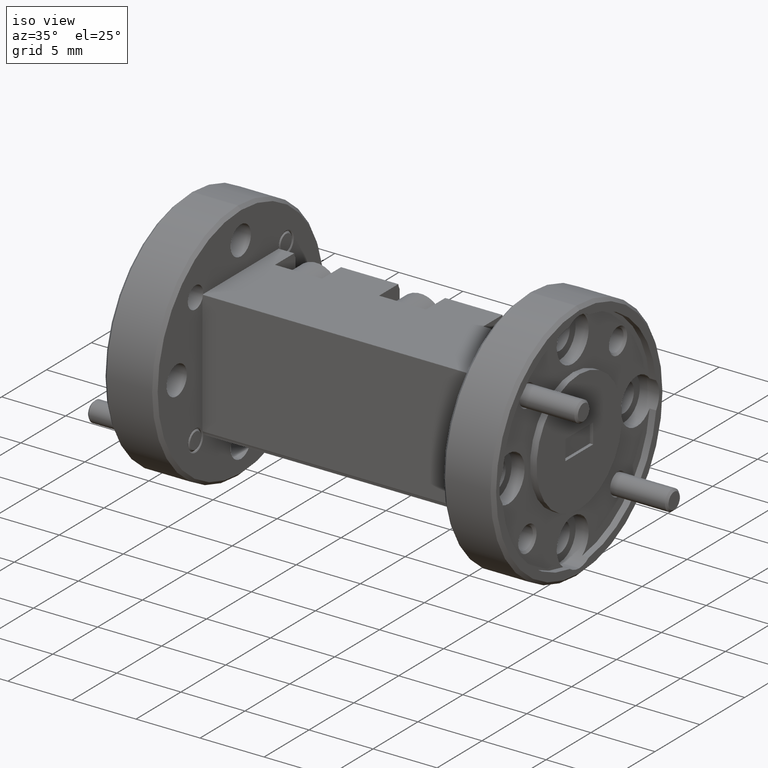
[diagram: clean part render]
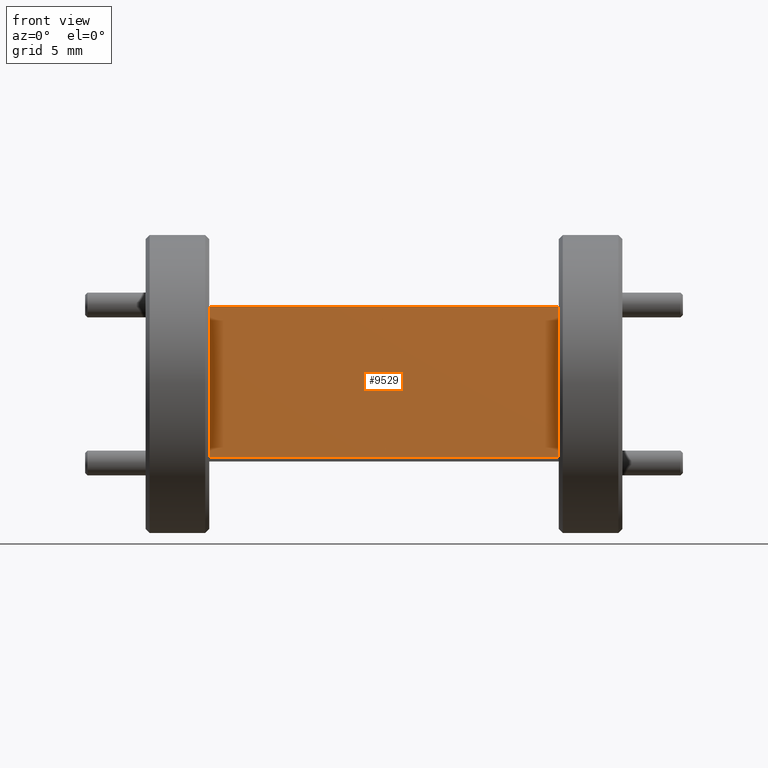
[diagram: tour spotlight — one face highlighted and labeled with its STEP entity id]
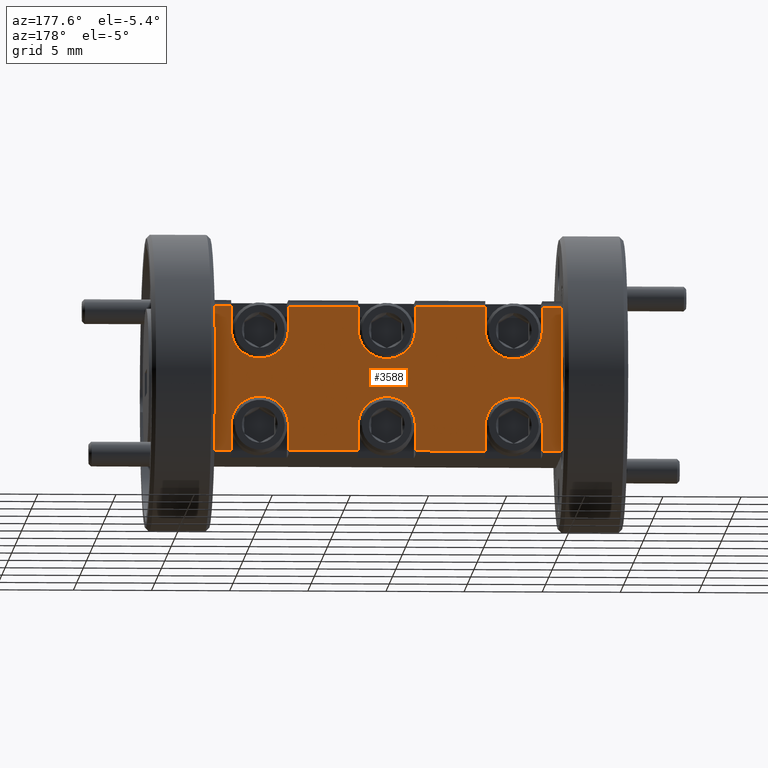
[diagram: tour spotlight — one face highlighted and labeled with its STEP entity id]
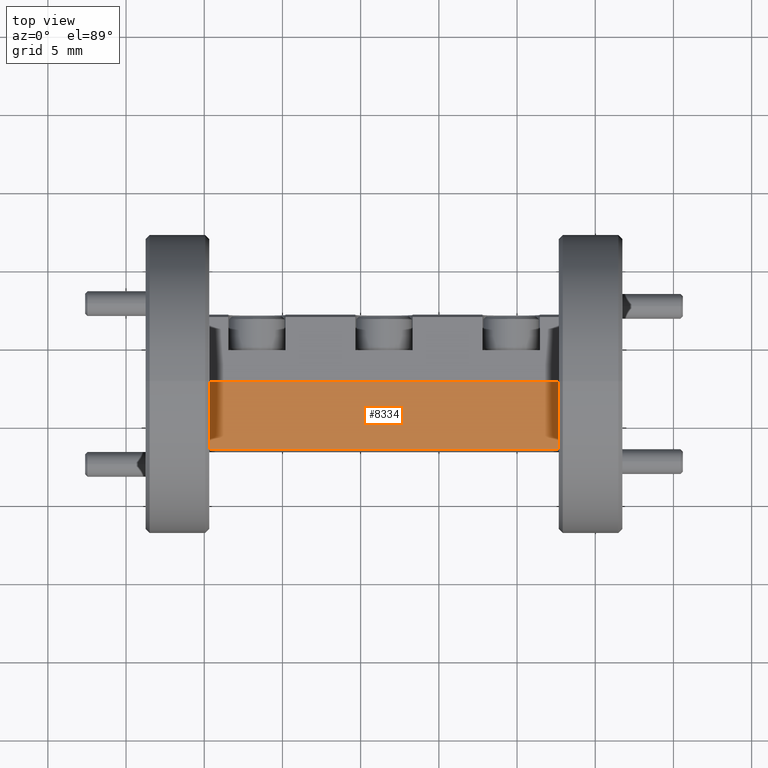
[diagram: tour spotlight — one face highlighted and labeled with its STEP entity id]
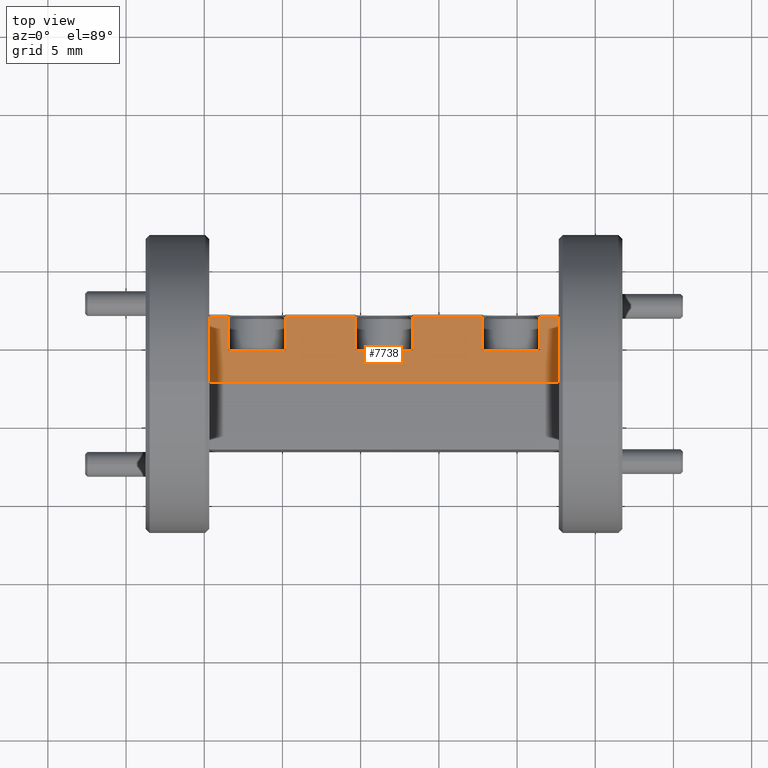
[diagram: tour spotlight — one face highlighted and labeled with its STEP entity id]
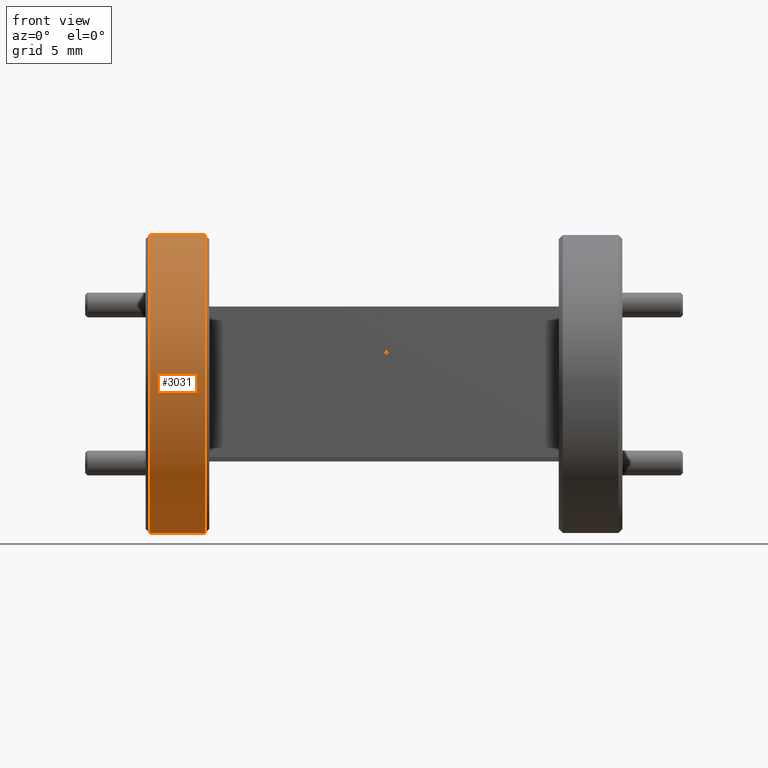
[diagram: tour spotlight — one face highlighted and labeled with its STEP entity id]
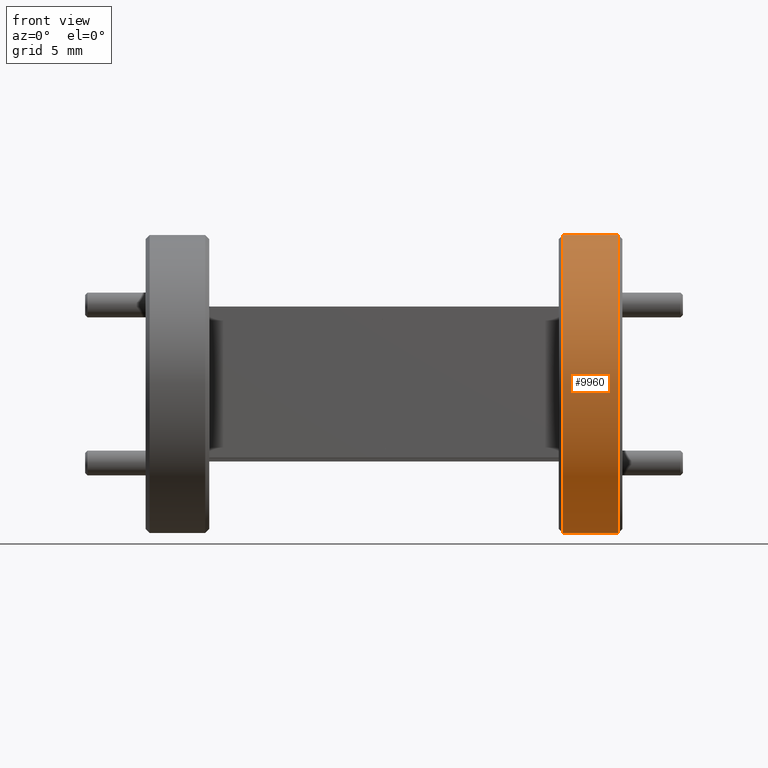
[diagram: tour spotlight — one face highlighted and labeled with its STEP entity id]
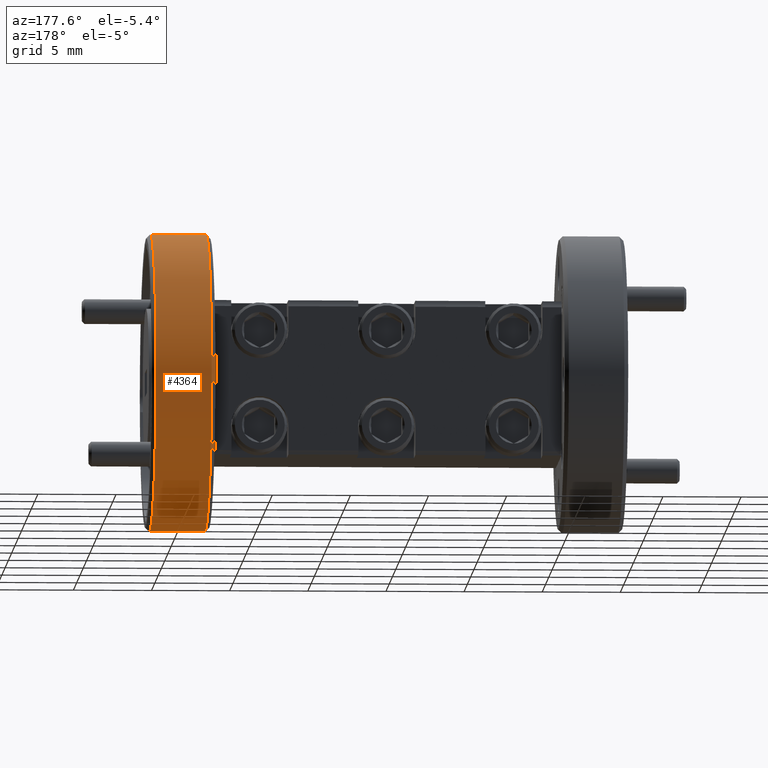
[diagram: tour spotlight — one face highlighted and labeled with its STEP entity id]
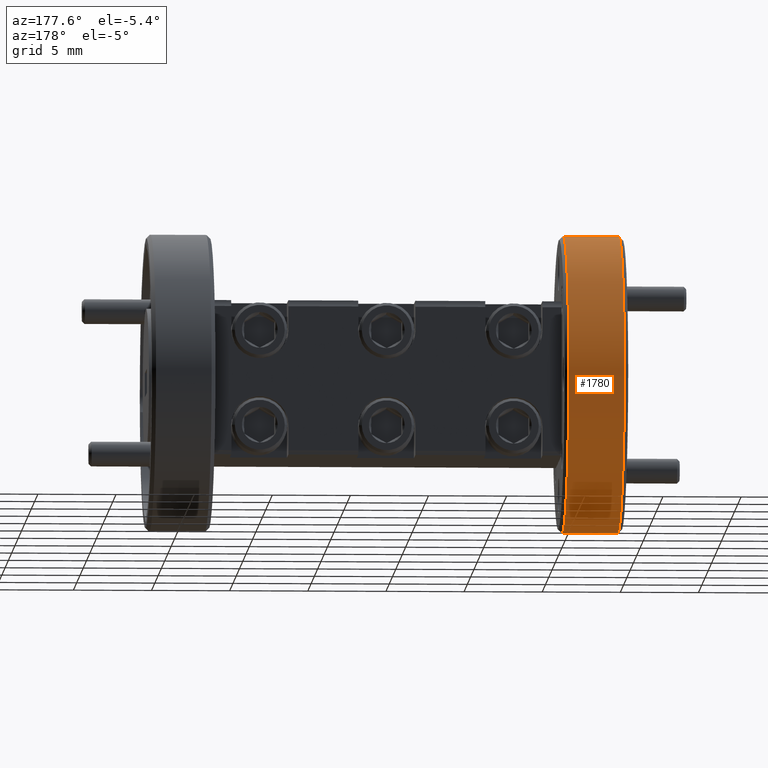
[diagram: tour spotlight — one face highlighted and labeled with its STEP entity id]
A machine part: a face-by-face anatomy tour. The part has 410 B-rep faces; the first image is the clean iso view, then the 8 largest visible faces are spotlighted one at a time (largest first), each with its STEP entity span.

Face 1 — front view, entity #9529. In plain terms, the highlighted planar face has unit normal (-0, 1, 0).
Definition (entity closure, byte-faithful):
#414 = EDGE_CURVE ( 'NONE', #8583, #545, #10306, .T. ) ;
#545 = VERTEX_POINT ( 'NONE', #3422 ) ;
#558 = EDGE_CURVE ( 'NONE', #5206, #5336, #635, .T. ) ;
#635 = LINE ( 'NONE', #3370, #6236 ) ;
#723 = ORIENTED_EDGE ( 'NONE', *, *, #558, .F. ) ;
#730 = ORIENTED_EDGE ( 'NONE', *, *, #8538, .T. ) ;
#867 = VECTOR ( 'NONE', #4885, 39.37007874015748143 ) ;
#1069 = CARTESIAN_POINT ( 'NONE',  ( 0.01245128250286008965, 0.5265558021064788985, 1.056696360816367974 ) ) ;
#1427 = VECTOR ( 'NONE', #11725, 39.37007874015748143 ) ;
#1467 = DIRECTION ( 'NONE',  ( -8.884191668433091897E-17, 1.000000000000000000, 4.817955376316477079E-17 ) ) ;
#1611 = CARTESIAN_POINT ( 'NONE',  ( 0.01245128250285988496, 0.5265558021064788985, 0.6872106685476393473 ) ) ;
#2096 = VECTOR ( 'NONE', #9462, 39.37007874015748143 ) ;
#2252 = CARTESIAN_POINT ( 'NONE',  ( 0.8924512825028598773, 0.5265558021064788985, 1.066031897602086165 ) ) ;
#2768 = CARTESIAN_POINT ( 'NONE',  ( 0.01245128250286008965, 0.5265558021064788985, 1.056696360816367974 ) ) ;
#2818 = CARTESIAN_POINT ( 'NONE',  ( 0.01245128250286008965, 0.5265558021064788985, 0.4919535146820028793 ) ) ;
#3177 = LINE ( 'NONE', #10723, #1427 ) ;
#3370 = CARTESIAN_POINT ( 'NONE',  ( 0.01245128250286008965, 0.5265558021064788985, 0.4919535146820028793 ) ) ;
#3422 = CARTESIAN_POINT ( 'NONE',  ( 0.01410364920518561785, 0.5265558021064787875, 1.066031897602084610 ) ) ;
#3500 = VERTEX_POINT ( 'NONE', #4447 ) ;
#3873 = EDGE_CURVE ( 'NONE', #3500, #8583, #4824, .T. ) ;
#4447 = CARTESIAN_POINT ( 'NONE',  ( 0.8924512825028598773, 0.5265558021064788985, 0.6872106685476392363 ) ) ;
#4494 = EDGE_CURVE ( 'NONE', #545, #5336, #11987, .T. ) ;
#4551 = DIRECTION ( 'NONE',  ( -1.402348636747680963E-18, -4.817955376316473998E-17, 1.000000000000000000 ) ) ;
#4729 = EDGE_LOOP ( 'NONE', ( #723, #730, #10551, #6264, #6457 ) ) ;
#4824 = LINE ( 'NONE', #6755, #2096 ) ;
#4885 = DIRECTION ( 'NONE',  ( -1.000000000000000000, 2.674502495201554687E-33, -0.000000000000000000 ) ) ;
#5206 = VERTEX_POINT ( 'NONE', #1611 ) ;
#5336 = VERTEX_POINT ( 'NONE', #1069 ) ;
#5512 = CARTESIAN_POINT ( 'NONE',  ( 0.01322850595343346390, 0.5265558021064788985, 1.059762882430979714 ) ) ;
#6047 = AXIS2_PLACEMENT_3D ( 'NONE', #2818, #1467, #7349 ) ;
#6236 = VECTOR ( 'NONE', #4551, 39.37007874015748143 ) ;
#6264 = ORIENTED_EDGE ( 'NONE', *, *, #414, .T. ) ;
#6424 = CARTESIAN_POINT ( 'NONE',  ( 0.01410364920518561785, 0.5265558021064787875, 1.066031897602084610 ) ) ;
#6457 = ORIENTED_EDGE ( 'NONE', *, *, #4494, .T. ) ;
#6755 = CARTESIAN_POINT ( 'NONE',  ( 0.8924512825028598773, 0.5265558021064790095, 0.4919535146820028793 ) ) ;
#7349 = DIRECTION ( 'NONE',  ( 1.000000000000000000, 8.884191668433091897E-17, -5.551115123125780853E-17 ) ) ;
#7681 = CARTESIAN_POINT ( 'NONE',  ( 1.032451282502860224, 0.5265558021064788985, 1.066031897602086165 ) ) ;
#8538 = EDGE_CURVE ( 'NONE', #5206, #3500, #3177, .T. ) ;
#8583 = VERTEX_POINT ( 'NONE', #2252 ) ;
#9462 = DIRECTION ( 'NONE',  ( -1.402348636747680963E-18, -4.817955376316473998E-17, 1.000000000000000000 ) ) ;
#9529 = ADVANCED_FACE ( 'NONE', ( #9953 ), #10174, .F. ) ;
#9953 = FACE_OUTER_BOUND ( 'NONE', #4729, .T. ) ;
#10174 = PLANE ( 'NONE',  #6047 ) ;
#10193 = CARTESIAN_POINT ( 'NONE',  ( 0.01380728797549338541, 0.5265558021064788985, 1.062869124819075806 ) ) ;
#10306 = LINE ( 'NONE', #7681, #867 ) ;
#10551 = ORIENTED_EDGE ( 'NONE', *, *, #3873, .T. ) ;
#10723 = CARTESIAN_POINT ( 'NONE',  ( 1.032451282502860224, 0.5265558021064788985, 0.6872106685476392363 ) ) ;
#11725 = DIRECTION ( 'NONE',  ( 1.000000000000000000, -2.674502495201554687E-33, 0.000000000000000000 ) ) ;
#11987 = B_SPLINE_CURVE_WITH_KNOTS ( 'NONE', 3,
 ( #6424, #10193, #5512, #2768 ),
 .UNSPECIFIED., .F., .F.,
 ( 4, 4 ),
 ( 0.0005741155330905420209, 0.0008147986866334716929 ),
 .UNSPECIFIED. ) ;

Face 2 — auxiliary view, entity #3588. In plain terms, the highlighted planar face has unit normal (-0, -1, 0).
Definition (entity closure, byte-faithful):
#54 = VERTEX_POINT ( 'NONE', #10954 ) ;
#99 = CARTESIAN_POINT ( 'NONE',  ( 0.06045128250285996402, 0.8665558021064787564, 0.9919535146820032123 ) ) ;
#115 = ORIENTED_EDGE ( 'NONE', *, *, #1794, .T. ) ;
#272 = ORIENTED_EDGE ( 'NONE', *, *, #11037, .F. ) ;
#295 = DIRECTION ( 'NONE',  ( -1.000000000000000000, 0.000000000000000000, 0.000000000000000000 ) ) ;
#303 = CIRCLE ( 'NONE', #6260, 0.07200000000000000844 ) ;
#391 = CARTESIAN_POINT ( 'NONE',  ( 0.2044512825028600711, 0.8665558021064787564, 1.051516003625126539 ) ) ;
#417 = ORIENTED_EDGE ( 'NONE', *, *, #4920, .F. ) ;
#499 = VERTEX_POINT ( 'NONE', #4420 ) ;
#506 = EDGE_CURVE ( 'NONE', #10724, #9556, #1682, .T. ) ;
#538 = VECTOR ( 'NONE', #6402, 39.37007874015748143 ) ;
#542 = CARTESIAN_POINT ( 'NONE',  ( 0.5244512825028599945, 0.8665558021064787564, 0.7519535146820029992 ) ) ;
#569 = CARTESIAN_POINT ( 'NONE',  ( 0.8444512825028599456, 0.8665558021064786454, 0.9919535146820032123 ) ) ;
#670 = DIRECTION ( 'NONE',  ( 9.106159978880901061E-16, 0.000000000000000000, -1.000000000000000000 ) ) ;
#756 = ORIENTED_EDGE ( 'NONE', *, *, #2812, .T. ) ;
#786 = EDGE_CURVE ( 'NONE', #4133, #10724, #4963, .T. ) ;
#825 = LINE ( 'NONE', #4612, #1688 ) ;
#836 = CARTESIAN_POINT ( 'NONE',  ( 0.3804512825028600331, 0.8665558021064787564, 1.066953514682003057 ) ) ;
#851 = LINE ( 'NONE', #1919, #11384 ) ;
#933 = CARTESIAN_POINT ( 'NONE',  ( 0.7004512825028601508, 0.8665558021064786454, 1.066953514682003057 ) ) ;
#1198 = EDGE_CURVE ( 'NONE', #10642, #4047, #11547, .T. ) ;
#1234 = CARTESIAN_POINT ( 'NONE',  ( 0.7004512825028599288, 0.8665558021064787564, 0.6870882494393947271 ) ) ;
#1257 = ORIENTED_EDGE ( 'NONE', *, *, #11568, .T. ) ;
#1285 = VECTOR ( 'NONE', #6314, 39.37007874015748143 ) ;
#1306 = CIRCLE ( 'NONE', #8047, 0.07200000000000000844 ) ;
#1455 = CARTESIAN_POINT ( 'NONE',  ( 0.01245128250286002200, 0.8665558021064787564, 0.6923910257388795619 ) ) ;
#1554 = CARTESIAN_POINT ( 'NONE',  ( 0.8924512825028599883, 0.8665558021064787564, 0.6870882494393947271 ) ) ;
#1587 = DIRECTION ( 'NONE',  ( -1.164139770027384973E-16, -1.000000000000000000, 6.625526864779352844E-33 ) ) ;
#1599 = LINE ( 'NONE', #10213, #5353 ) ;
#1605 = CARTESIAN_POINT ( 'NONE',  ( 0.5244512825028599945, 0.8665558021064787564, 0.7519535146820029992 ) ) ;
#1633 = LINE ( 'NONE', #9028, #10089 ) ;
#1656 = VECTOR ( 'NONE', #8686, 39.37007874015748143 ) ;
#1676 = VERTEX_POINT ( 'NONE', #11428 ) ;
#1682 = LINE ( 'NONE', #11920, #9962 ) ;
#1688 = VECTOR ( 'NONE', #8376, 39.37007874015748143 ) ;
#1767 = DIRECTION ( 'NONE',  ( -5.691349986800549604E-17, -0.000000000000000000, -1.000000000000000000 ) ) ;
#1773 = CARTESIAN_POINT ( 'NONE',  ( 0.8444512825028599456, 0.8665558021064787564, 1.051516003625126539 ) ) ;
#1794 = EDGE_CURVE ( 'NONE', #5294, #54, #2275, .T. ) ;
#1866 = CARTESIAN_POINT ( 'NONE',  ( 0.4524512825028599861, 0.8665558021064787564, 0.7519535146820029992 ) ) ;
#1872 = CARTESIAN_POINT ( 'NONE',  ( 0.3804512825028599776, 0.8665558021064787564, 0.6870882494393947271 ) ) ;
#1874 = CARTESIAN_POINT ( 'NONE',  ( 0.2044512825028599878, 0.8665558021064787564, 0.9919535146820032123 ) ) ;
#1919 = CARTESIAN_POINT ( 'NONE',  ( 0.06045128250286002647, 0.8665558021064787564, 1.066953514682003057 ) ) ;
#2055 = VERTEX_POINT ( 'NONE', #4323 ) ;
#2067 = EDGE_CURVE ( 'NONE', #11497, #8844, #2410, .T. ) ;
#2210 = EDGE_LOOP ( 'NONE', ( #6986, #11753, #6673, #4779, #3267, #756, #10030, #7040, #2913, #7236, #1257, #8650, #11626, #3431, #10396, #115, #5220, #417, #8486, #8435, #3003, #8107, #7968, #10610, #8499, #272, #6302, #3448, #10141 ) ) ;
#2224 = EDGE_CURVE ( 'NONE', #4527, #10787, #851, .T. ) ;
#2275 = LINE ( 'NONE', #9831, #10766 ) ;
#2284 = EDGE_CURVE ( 'NONE', #2055, #2962, #825, .T. ) ;
#2406 = CARTESIAN_POINT ( 'NONE',  ( 0.8444512825028599456, 0.8665558021064787564, 0.7519535146820029992 ) ) ;
#2410 = LINE ( 'NONE', #542, #1285 ) ;
#2451 = CARTESIAN_POINT ( 'NONE',  ( 0.3804512825028600331, 0.8665558021064787564, 0.6769535146820031546 ) ) ;
#2465 = VERTEX_POINT ( 'NONE', #1872 ) ;
#2491 = DIRECTION ( 'NONE',  ( -1.000000000000000000, 0.000000000000000000, 0.000000000000000000 ) ) ;
#2521 = DIRECTION ( 'NONE',  ( -9.106159978880901061E-16, 0.000000000000000000, 1.000000000000000000 ) ) ;
#2523 = DIRECTION ( 'NONE',  ( -1.000000000000000000, 0.000000000000000000, 0.000000000000000000 ) ) ;
#2535 = CARTESIAN_POINT ( 'NONE',  ( 0.01245128250286002200, 0.8665558021064787564, 1.251953514682003110 ) ) ;
#2547 = VERTEX_POINT ( 'NONE', #10784 ) ;
#2664 = DIRECTION ( 'NONE',  ( -1.000000000000000000, 0.000000000000000000, 0.000000000000000000 ) ) ;
#2685 = DIRECTION ( 'NONE',  ( 1.000000000000000000, -0.000000000000000000, -0.000000000000000000 ) ) ;
#2745 = CARTESIAN_POINT ( 'NONE',  ( 0.7004512825028599288, 0.8665558021064787564, 1.051516003625126539 ) ) ;
#2812 = EDGE_CURVE ( 'NONE', #9786, #499, #3677, .T. ) ;
#2839 = VERTEX_POINT ( 'NONE', #3742 ) ;
#2843 = DIRECTION ( 'NONE',  ( -9.106159978880901061E-16, 0.000000000000000000, -1.000000000000000000 ) ) ;
#2854 = EDGE_CURVE ( 'NONE', #8163, #11497, #9836, .T. ) ;
#2906 = VERTEX_POINT ( 'NONE', #2745 ) ;
#2913 = ORIENTED_EDGE ( 'NONE', *, *, #7774, .T. ) ;
#2926 = CARTESIAN_POINT ( 'NONE',  ( 0.06045128250286002647, 0.8665558021064787564, 0.6769535146820031546 ) ) ;
#2962 = VERTEX_POINT ( 'NONE', #3762 ) ;
#3003 = ORIENTED_EDGE ( 'NONE', *, *, #2067, .F. ) ;
#3091 = LINE ( 'NONE', #7079, #5043 ) ;
#3191 = CARTESIAN_POINT ( 'NONE',  ( 0.5244512825028599945, 0.8665558021064787564, 0.9919535146820032123 ) ) ;
#3240 = CARTESIAN_POINT ( 'NONE',  ( 0.7004512825028601508, 0.8665558021064787564, 0.6769535146820031546 ) ) ;
#3267 = ORIENTED_EDGE ( 'NONE', *, *, #8304, .T. ) ;
#3306 = AXIS2_PLACEMENT_3D ( 'NONE', #1866, #5547, #10166 ) ;
#3431 = ORIENTED_EDGE ( 'NONE', *, *, #506, .T. ) ;
#3448 = ORIENTED_EDGE ( 'NONE', *, *, #2284, .T. ) ;
#3461 = EDGE_CURVE ( 'NONE', #10642, #8844, #3091, .T. ) ;
#3588 = ADVANCED_FACE ( 'NONE', ( #7257 ), #11005, .F. ) ;
#3593 = DIRECTION ( 'NONE',  ( -1.164139770027385466E-16, -1.000000000000000000, -6.625526864779355581E-33 ) ) ;
#3677 = LINE ( 'NONE', #12231, #538 ) ;
#3742 = CARTESIAN_POINT ( 'NONE',  ( 0.06045128250285996402, 0.8665558021064787564, 0.7519535146820029992 ) ) ;
#3762 = CARTESIAN_POINT ( 'NONE',  ( 0.01410364920518575489, 0.8665558021064787564, 0.6870882494393948381 ) ) ;
#3852 = CARTESIAN_POINT ( 'NONE',  ( 1.032451282502860002, 0.8665558021064787564, 1.051516003625126539 ) ) ;
#3862 = EDGE_CURVE ( 'NONE', #9556, #5294, #7478, .T. ) ;
#3935 = CARTESIAN_POINT ( 'NONE',  ( 0.5244512825028601055, 0.8665558021064787564, 0.6870882494393948381 ) ) ;
#4047 = VERTEX_POINT ( 'NONE', #10385 ) ;
#4133 = VERTEX_POINT ( 'NONE', #569 ) ;
#4171 = VERTEX_POINT ( 'NONE', #11570 ) ;
#4209 = CARTESIAN_POINT ( 'NONE',  ( 0.01361655628227561969, 0.8665558021064787564, 0.6888677209463806017 ) ) ;
#4323 = CARTESIAN_POINT ( 'NONE',  ( 0.06045128250286009586, 0.8665558021064787564, 0.6870882494393947271 ) ) ;
#4331 = VERTEX_POINT ( 'NONE', #7935 ) ;
#4420 = CARTESIAN_POINT ( 'NONE',  ( 0.3804512825028599776, 0.8665558021064787564, 1.051516003625126539 ) ) ;
#4471 = DIRECTION ( 'NONE',  ( -1.164139770027385466E-16, -1.000000000000000000, -6.625526864779355581E-33 ) ) ;
#4527 = VERTEX_POINT ( 'NONE', #4827 ) ;
#4535 = CARTESIAN_POINT ( 'NONE',  ( 0.7724512825028599927, 0.8665558021064786454, 0.9919535146820032123 ) ) ;
#4559 = CARTESIAN_POINT ( 'NONE',  ( 0.8924512825028600993, 0.8665558021064787564, 1.051516003625126539 ) ) ;
#4603 = CARTESIAN_POINT ( 'NONE',  ( 0.5244512825028601055, 0.8665558021064787564, 1.051516003625126539 ) ) ;
#4612 = CARTESIAN_POINT ( 'NONE',  ( 1.032451282502860002, 0.8665558021064787564, 0.6870882494393947271 ) ) ;
#4623 = DIRECTION ( 'NONE',  ( -9.106159978880901061E-16, 0.000000000000000000, -1.000000000000000000 ) ) ;
#4709 = VECTOR ( 'NONE', #2521, 39.37007874015748143 ) ;
#4779 = ORIENTED_EDGE ( 'NONE', *, *, #6922, .T. ) ;
#4786 = LINE ( 'NONE', #3852, #5347 ) ;
#4827 = CARTESIAN_POINT ( 'NONE',  ( 0.06045128250286009586, 0.8665558021064787564, 1.051516003625126539 ) ) ;
#4886 = CARTESIAN_POINT ( 'NONE',  ( 0.01245128250286002200, 0.8665558021064787564, 0.6923910257388795619 ) ) ;
#4920 = EDGE_CURVE ( 'NONE', #4047, #2547, #6844, .T. ) ;
#4963 = LINE ( 'NONE', #10643, #1656 ) ;
#5043 = VECTOR ( 'NONE', #6016, 39.37007874015748143 ) ;
#5146 = VECTOR ( 'NONE', #10467, 39.37007874015748143 ) ;
#5171 = DIRECTION ( 'NONE',  ( -9.106159978880901061E-16, 0.000000000000000000, 1.000000000000000000 ) ) ;
#5220 = ORIENTED_EDGE ( 'NONE', *, *, #11101, .F. ) ;
#5241 = AXIS2_PLACEMENT_3D ( 'NONE', #2535, #1587, #5383 ) ;
#5294 = VERTEX_POINT ( 'NONE', #1554 ) ;
#5347 = VECTOR ( 'NONE', #7637, 39.37007874015748143 ) ;
#5353 = VECTOR ( 'NONE', #5529, 39.37007874015748143 ) ;
#5383 = DIRECTION ( 'NONE',  ( 1.000000000000000000, -1.164139770027384973E-16, 0.000000000000000000 ) ) ;
#5417 = DIRECTION ( 'NONE',  ( 9.106159978880901061E-16, 0.000000000000000000, 1.000000000000000000 ) ) ;
#5522 = VECTOR ( 'NONE', #5417, 39.37007874015748143 ) ;
#5529 = DIRECTION ( 'NONE',  ( -5.691349986800549604E-17, -0.000000000000000000, -1.000000000000000000 ) ) ;
#5536 = EDGE_CURVE ( 'NONE', #12150, #4331, #10658, .T. ) ;
#5547 = DIRECTION ( 'NONE',  ( 1.164139770027385466E-16, 1.000000000000000000, -6.625526864779355581E-33 ) ) ;
#5696 = VECTOR ( 'NONE', #11522, 39.37007874015748143 ) ;
#5704 = EDGE_CURVE ( 'NONE', #1676, #11996, #1599, .T. ) ;
#5710 = CARTESIAN_POINT ( 'NONE',  ( 0.8924512825028600993, 0.8665558021064787564, 1.251953514682003110 ) ) ;
#5729 = LINE ( 'NONE', #2926, #5696 ) ;
#5802 = DIRECTION ( 'NONE',  ( 1.000000000000000000, -0.000000000000000000, -0.000000000000000000 ) ) ;
#5913 = LINE ( 'NONE', #933, #5146 ) ;
#5995 = EDGE_CURVE ( 'NONE', #2962, #11996, #10186, .T. ) ;
#6016 = DIRECTION ( 'NONE',  ( -1.000000000000000000, 0.000000000000000000, 0.000000000000000000 ) ) ;
#6019 = DIRECTION ( 'NONE',  ( -1.164139770027385466E-16, -1.000000000000000000, -6.625526864779355581E-33 ) ) ;
#6073 = VECTOR ( 'NONE', #8155, 39.37007874015748143 ) ;
#6124 = AXIS2_PLACEMENT_3D ( 'NONE', #4535, #3593, #2664 ) ;
#6237 = CARTESIAN_POINT ( 'NONE',  ( 0.3804512825028599776, 0.8665558021064787564, 0.7519535146820029992 ) ) ;
#6246 = CARTESIAN_POINT ( 'NONE',  ( 0.1324512825028599794, 0.8665558021064787564, 0.7519535146820029992 ) ) ;
#6260 = AXIS2_PLACEMENT_3D ( 'NONE', #6246, #10122, #9947 ) ;
#6302 = ORIENTED_EDGE ( 'NONE', *, *, #10457, .F. ) ;
#6305 = CARTESIAN_POINT ( 'NONE',  ( 0.7724512825028599927, 0.8665558021064787564, 0.7519535146820029992 ) ) ;
#6314 = DIRECTION ( 'NONE',  ( 9.106159978880901061E-16, 0.000000000000000000, -1.000000000000000000 ) ) ;
#6402 = DIRECTION ( 'NONE',  ( 1.000000000000000000, -0.000000000000000000, -0.000000000000000000 ) ) ;
#6481 = VERTEX_POINT ( 'NONE', #4603 ) ;
#6531 = VECTOR ( 'NONE', #670, 39.37007874015748143 ) ;
#6532 = LINE ( 'NONE', #7344, #5522 ) ;
#6673 = ORIENTED_EDGE ( 'NONE', *, *, #2224, .T. ) ;
#6844 = CIRCLE ( 'NONE', #8410, 0.07199999999999993905 ) ;
#6922 = EDGE_CURVE ( 'NONE', #10787, #8382, #10251, .T. ) ;
#6952 = EDGE_CURVE ( 'NONE', #11695, #4133, #9864, .T. ) ;
#6958 = CARTESIAN_POINT ( 'NONE',  ( 0.2044512825028599878, 0.8665558021064787564, 0.7519535146820029992 ) ) ;
#6986 = ORIENTED_EDGE ( 'NONE', *, *, #5704, .F. ) ;
#7040 = ORIENTED_EDGE ( 'NONE', *, *, #10565, .T. ) ;
#7079 = CARTESIAN_POINT ( 'NONE',  ( 1.032451282502860002, 0.8665558021064787564, 0.6870882494393947271 ) ) ;
#7236 = ORIENTED_EDGE ( 'NONE', *, *, #11612, .T. ) ;
#7237 = DIRECTION ( 'NONE',  ( 1.164139770027385466E-16, 1.000000000000000000, -6.625526864779355581E-33 ) ) ;
#7257 = FACE_OUTER_BOUND ( 'NONE', #2210, .T. ) ;
#7344 = CARTESIAN_POINT ( 'NONE',  ( 0.2044512825028599878, 0.8665558021064787564, 0.9919535146820032123 ) ) ;
#7478 = LINE ( 'NONE', #5710, #9209 ) ;
#7637 = DIRECTION ( 'NONE',  ( 1.000000000000000000, -0.000000000000000000, -0.000000000000000000 ) ) ;
#7774 = EDGE_CURVE ( 'NONE', #8177, #6481, #1633, .T. ) ;
#7935 = CARTESIAN_POINT ( 'NONE',  ( 0.2044512825028601266, 0.8665558021064787564, 0.6870882494393949491 ) ) ;
#7968 = ORIENTED_EDGE ( 'NONE', *, *, #8159, .F. ) ;
#8023 = VECTOR ( 'NONE', #5171, 39.37007874015748143 ) ;
#8047 = AXIS2_PLACEMENT_3D ( 'NONE', #8975, #6019, #295 ) ;
#8102 = DIRECTION ( 'NONE',  ( 9.106159978880901061E-16, 0.000000000000000000, -1.000000000000000000 ) ) ;
#8107 = ORIENTED_EDGE ( 'NONE', *, *, #2854, .F. ) ;
#8155 = DIRECTION ( 'NONE',  ( -1.000000000000000000, 0.000000000000000000, 0.000000000000000000 ) ) ;
#8159 = EDGE_CURVE ( 'NONE', #2465, #8163, #9019, .T. ) ;
#8163 = VERTEX_POINT ( 'NONE', #6237 ) ;
#8177 = VERTEX_POINT ( 'NONE', #3191 ) ;
#8302 = CARTESIAN_POINT ( 'NONE',  ( 0.1324512825028599794, 0.8665558021064787564, 0.9919535146820032123 ) ) ;
#8304 = EDGE_CURVE ( 'NONE', #8382, #9786, #6532, .T. ) ;
#8376 = DIRECTION ( 'NONE',  ( -1.000000000000000000, 0.000000000000000000, 0.000000000000000000 ) ) ;
#8382 = VERTEX_POINT ( 'NONE', #1874 ) ;
#8410 = AXIS2_PLACEMENT_3D ( 'NONE', #6305, #7237, #2523 ) ;
#8435 = ORIENTED_EDGE ( 'NONE', *, *, #3461, .T. ) ;
#8486 = ORIENTED_EDGE ( 'NONE', *, *, #1198, .F. ) ;
#8494 = CARTESIAN_POINT ( 'NONE',  ( 1.032451282502860002, 0.8665558021064787564, 1.051516003625126539 ) ) ;
#8499 = ORIENTED_EDGE ( 'NONE', *, *, #5536, .F. ) ;
#8631 = LINE ( 'NONE', #8494, #9184 ) ;
#8650 = ORIENTED_EDGE ( 'NONE', *, *, #6952, .T. ) ;
#8686 = DIRECTION ( 'NONE',  ( 9.106159978880901061E-16, 0.000000000000000000, 1.000000000000000000 ) ) ;
#8764 = EDGE_CURVE ( 'NONE', #1676, #4527, #8631, .T. ) ;
#8844 = VERTEX_POINT ( 'NONE', #3935 ) ;
#8906 = CARTESIAN_POINT ( 'NONE',  ( 0.01410364920518575489, 0.8665558021064787564, 0.6870882494393948381 ) ) ;
#8975 = CARTESIAN_POINT ( 'NONE',  ( 0.4524512825028599861, 0.8665558021064787564, 0.9919535146820032123 ) ) ;
#9019 = LINE ( 'NONE', #2451, #4709 ) ;
#9028 = CARTESIAN_POINT ( 'NONE',  ( 0.5244512825028599945, 0.8665558021064787564, 0.9919535146820032123 ) ) ;
#9082 = CARTESIAN_POINT ( 'NONE',  ( 1.032451282502860002, 0.8665558021064787564, 0.6870882494393947271 ) ) ;
#9184 = VECTOR ( 'NONE', #5802, 39.37007874015748143 ) ;
#9209 = VECTOR ( 'NONE', #1767, 39.37007874015748143 ) ;
#9323 = LINE ( 'NONE', #836, #12077 ) ;
#9556 = VERTEX_POINT ( 'NONE', #4559 ) ;
#9786 = VERTEX_POINT ( 'NONE', #391 ) ;
#9818 = CARTESIAN_POINT ( 'NONE',  ( 0.2044512825028599878, 0.8665558021064787564, 0.7519535146820029992 ) ) ;
#9831 = CARTESIAN_POINT ( 'NONE',  ( 1.032451282502860002, 0.8665558021064787564, 0.6870882494393947271 ) ) ;
#9836 = CIRCLE ( 'NONE', #3306, 0.07200000000000000844 ) ;
#9864 = CIRCLE ( 'NONE', #6124, 0.07199999999999993905 ) ;
#9947 = DIRECTION ( 'NONE',  ( -1.000000000000000000, 0.000000000000000000, 0.000000000000000000 ) ) ;
#9962 = VECTOR ( 'NONE', #2685, 39.37007874015748143 ) ;
#10030 = ORIENTED_EDGE ( 'NONE', *, *, #12103, .T. ) ;
#10068 = LINE ( 'NONE', #2406, #10777 ) ;
#10089 = VECTOR ( 'NONE', #10350, 39.37007874015748143 ) ;
#10122 = DIRECTION ( 'NONE',  ( 1.164139770027385466E-16, 1.000000000000000000, -6.625526864779355581E-33 ) ) ;
#10141 = ORIENTED_EDGE ( 'NONE', *, *, #5995, .T. ) ;
#10166 = DIRECTION ( 'NONE',  ( -1.000000000000000000, 0.000000000000000000, 0.000000000000000000 ) ) ;
#10186 = B_SPLINE_CURVE_WITH_KNOTS ( 'NONE', 3,
 ( #8906, #4209, #11746, #1455 ),
 .UNSPECIFIED., .F., .F.,
 ( 4, 4 ),
 ( 0.0008148183273814186634, 0.0009552749866795567316 ),
 .UNSPECIFIED. ) ;
#10213 = CARTESIAN_POINT ( 'NONE',  ( 0.01245128250286002200, 0.8665558021064787564, 1.251953514682003110 ) ) ;
#10251 = CIRCLE ( 'NONE', #10453, 0.07200000000000000844 ) ;
#10350 = DIRECTION ( 'NONE',  ( 9.106159978880901061E-16, 0.000000000000000000, 1.000000000000000000 ) ) ;
#10385 = CARTESIAN_POINT ( 'NONE',  ( 0.7004512825028599288, 0.8665558021064787564, 0.7519535146820029992 ) ) ;
#10396 = ORIENTED_EDGE ( 'NONE', *, *, #3862, .T. ) ;
#10453 = AXIS2_PLACEMENT_3D ( 'NONE', #8302, #4471, #2491 ) ;
#10457 = EDGE_CURVE ( 'NONE', #2055, #2839, #5729, .T. ) ;
#10467 = DIRECTION ( 'NONE',  ( -9.106159978880901061E-16, 0.000000000000000000, -1.000000000000000000 ) ) ;
#10565 = EDGE_CURVE ( 'NONE', #4171, #8177, #1306, .T. ) ;
#10610 = ORIENTED_EDGE ( 'NONE', *, *, #11117, .T. ) ;
#10642 = VERTEX_POINT ( 'NONE', #1234 ) ;
#10643 = CARTESIAN_POINT ( 'NONE',  ( 0.8444512825028599456, 0.8665558021064786454, 0.9919535146820032123 ) ) ;
#10658 = LINE ( 'NONE', #6958, #6531 ) ;
#10724 = VERTEX_POINT ( 'NONE', #1773 ) ;
#10742 = DIRECTION ( 'NONE',  ( -1.000000000000000000, 0.000000000000000000, 0.000000000000000000 ) ) ;
#10757 = CARTESIAN_POINT ( 'NONE',  ( 0.7004512825028599288, 0.8665558021064786454, 0.9919535146820032123 ) ) ;
#10766 = VECTOR ( 'NONE', #10742, 39.37007874015748143 ) ;
#10777 = VECTOR ( 'NONE', #8102, 39.37007874015748143 ) ;
#10784 = CARTESIAN_POINT ( 'NONE',  ( 0.8444512825028599456, 0.8665558021064787564, 0.7519535146820029992 ) ) ;
#10787 = VERTEX_POINT ( 'NONE', #99 ) ;
#10954 = CARTESIAN_POINT ( 'NONE',  ( 0.8444512825028599456, 0.8665558021064787564, 0.6870882494393947271 ) ) ;
#10988 = LINE ( 'NONE', #9082, #6073 ) ;
#11005 = PLANE ( 'NONE',  #5241 ) ;
#11037 = EDGE_CURVE ( 'NONE', #2839, #12150, #303, .T. ) ;
#11101 = EDGE_CURVE ( 'NONE', #2547, #54, #10068, .T. ) ;
#11117 = EDGE_CURVE ( 'NONE', #2465, #4331, #10988, .T. ) ;
#11384 = VECTOR ( 'NONE', #2843, 39.37007874015748143 ) ;
#11428 = CARTESIAN_POINT ( 'NONE',  ( 0.01245128250285995435, 0.8665558021064789784, 1.051516003625126539 ) ) ;
#11497 = VERTEX_POINT ( 'NONE', #1605 ) ;
#11522 = DIRECTION ( 'NONE',  ( -9.106159978880901061E-16, 0.000000000000000000, 1.000000000000000000 ) ) ;
#11547 = LINE ( 'NONE', #3240, #8023 ) ;
#11568 = EDGE_CURVE ( 'NONE', #2906, #11695, #5913, .T. ) ;
#11570 = CARTESIAN_POINT ( 'NONE',  ( 0.3804512825028599776, 0.8665558021064787564, 0.9919535146820032123 ) ) ;
#11612 = EDGE_CURVE ( 'NONE', #6481, #2906, #4786, .T. ) ;
#11626 = ORIENTED_EDGE ( 'NONE', *, *, #786, .T. ) ;
#11695 = VERTEX_POINT ( 'NONE', #10757 ) ;
#11746 = CARTESIAN_POINT ( 'NONE',  ( 0.01305905381784020630, 0.8665558021064787564, 0.6906363377399123982 ) ) ;
#11753 = ORIENTED_EDGE ( 'NONE', *, *, #8764, .T. ) ;
#11920 = CARTESIAN_POINT ( 'NONE',  ( 1.032451282502860002, 0.8665558021064787564, 1.051516003625126539 ) ) ;
#11996 = VERTEX_POINT ( 'NONE', #4886 ) ;
#12077 = VECTOR ( 'NONE', #4623, 39.37007874015748143 ) ;
#12103 = EDGE_CURVE ( 'NONE', #499, #4171, #9323, .T. ) ;
#12150 = VERTEX_POINT ( 'NONE', #9818 ) ;
#12231 = CARTESIAN_POINT ( 'NONE',  ( 1.032451282502860002, 0.8665558021064787564, 1.051516003625126539 ) ) ;

Face 3 — top view, entity #8334. In plain terms, the highlighted planar face has unit normal (-0, 0, -1).
Definition (entity closure, byte-faithful):
#171 = EDGE_CURVE ( 'NONE', #11622, #2130, #6574, .T. ) ;
#202 = FACE_OUTER_BOUND ( 'NONE', #6522, .T. ) ;
#323 = AXIS2_PLACEMENT_3D ( 'NONE', #4739, #7726, #2950 ) ;
#632 = ORIENTED_EDGE ( 'NONE', *, *, #11223, .T. ) ;
#797 = VECTOR ( 'NONE', #2205, 39.37007874015748143 ) ;
#1201 = LINE ( 'NONE', #4932, #3915 ) ;
#1347 = CARTESIAN_POINT ( 'NONE',  ( 0.8924512825028600993, 0.5266870409828133814, 1.066953514682003057 ) ) ;
#1801 = VERTEX_POINT ( 'NONE', #1347 ) ;
#2024 = CARTESIAN_POINT ( 'NONE',  ( 1.032451282502860224, 0.5266870409828133814, 1.066953514682003057 ) ) ;
#2117 = B_SPLINE_CURVE_WITH_KNOTS ( 'NONE', 3,
 ( #6483, #11442, #10304, #2756, #2823, #9570, #8521 ),
 .UNSPECIFIED., .F., .F.,
 ( 4, 3, 4 ),
 ( 0.0008887078855455690304, 0.0009506424692069410107, 0.0009706384952224923670 ),
 .UNSPECIFIED. ) ;
#2130 = VERTEX_POINT ( 'NONE', #3511 ) ;
#2205 = DIRECTION ( 'NONE',  ( 1.000000000000000000, -2.757206031840760603E-17, -5.551115123125781470E-17 ) ) ;
#2380 = ORIENTED_EDGE ( 'NONE', *, *, #11151, .T. ) ;
#2388 = ORIENTED_EDGE ( 'NONE', *, *, #12241, .F. ) ;
#2427 = EDGE_CURVE ( 'NONE', #8040, #1801, #1201, .T. ) ;
#2756 = CARTESIAN_POINT ( 'NONE',  ( 0.01370051720126265818, 0.5273632369474388071, 1.066953514682003057 ) ) ;
#2823 = CARTESIAN_POINT ( 'NONE',  ( 0.01383491123339263863, 0.5271378482480489902, 1.066953514682003057 ) ) ;
#2950 = DIRECTION ( 'NONE',  ( 1.000000000000000000, -2.757206031840761220E-17, -5.551115123125781470E-17 ) ) ;
#3511 = CARTESIAN_POINT ( 'NONE',  ( 0.01245128250285981730, 0.5294572931708612096, 1.066953514682003057 ) ) ;
#3557 = VERTEX_POINT ( 'NONE', #8111 ) ;
#3595 = CARTESIAN_POINT ( 'NONE',  ( 0.01245128250285988496, 0.6965558021064788274, 1.066953514682003057 ) ) ;
#3834 = ORIENTED_EDGE ( 'NONE', *, *, #2427, .F. ) ;
#3915 = VECTOR ( 'NONE', #5816, 39.37007874015748143 ) ;
#4739 = CARTESIAN_POINT ( 'NONE',  ( 0.8924512825028600993, 0.6965558021064788274, 1.066953514682003057 ) ) ;
#4932 = CARTESIAN_POINT ( 'NONE',  ( 0.8924512825028600993, 0.6965558021064788274, 1.066953514682003057 ) ) ;
#4933 = PLANE ( 'NONE',  #323 ) ;
#5816 = DIRECTION ( 'NONE',  ( -2.757206031840762144E-17, -1.000000000000000000, -4.817955376316477079E-17 ) ) ;
#6002 = LINE ( 'NONE', #10676, #797 ) ;
#6483 = CARTESIAN_POINT ( 'NONE',  ( 0.01245128250285981730, 0.5294572931708612096, 1.066953514682003057 ) ) ;
#6522 = EDGE_LOOP ( 'NONE', ( #632, #2380, #3834, #2388, #7114 ) ) ;
#6574 = LINE ( 'NONE', #3595, #9423 ) ;
#7114 = ORIENTED_EDGE ( 'NONE', *, *, #171, .T. ) ;
#7571 = DIRECTION ( 'NONE',  ( -2.757206031840762144E-17, -1.000000000000000000, -4.817955376316477079E-17 ) ) ;
#7726 = DIRECTION ( 'NONE',  ( -5.551115123125781470E-17, 4.817955376316474614E-17, -1.000000000000000000 ) ) ;
#8040 = VERTEX_POINT ( 'NONE', #9979 ) ;
#8111 = CARTESIAN_POINT ( 'NONE',  ( 0.01410364920518589193, 0.5266870409828132704, 1.066953514682003057 ) ) ;
#8334 = ADVANCED_FACE ( 'NONE', ( #202 ), #4933, .F. ) ;
#8521 = CARTESIAN_POINT ( 'NONE',  ( 0.01410364920518589193, 0.5266870409828132704, 1.066953514682003057 ) ) ;
#9423 = VECTOR ( 'NONE', #7571, 39.37007874015748143 ) ;
#9454 = DIRECTION ( 'NONE',  ( 1.000000000000000000, -2.674502495201554687E-33, 0.000000000000000000 ) ) ;
#9570 = CARTESIAN_POINT ( 'NONE',  ( 0.01396928893463650172, 0.5269124498100199450, 1.066953514682003057 ) ) ;
#9979 = CARTESIAN_POINT ( 'NONE',  ( 0.8924512825028600993, 0.6965558021064788274, 1.066953514682003057 ) ) ;
#10304 = CARTESIAN_POINT ( 'NONE',  ( 0.01328425261294759012, 0.5280613433490060071, 1.066953514682003057 ) ) ;
#10583 = CARTESIAN_POINT ( 'NONE',  ( 0.01245128250285988496, 0.6965558021064788274, 1.066953514682003057 ) ) ;
#10676 = CARTESIAN_POINT ( 'NONE',  ( 0.8924512825028600993, 0.6965558021064788274, 1.066953514682003057 ) ) ;
#11151 = EDGE_CURVE ( 'NONE', #3557, #1801, #12176, .T. ) ;
#11223 = EDGE_CURVE ( 'NONE', #2130, #3557, #2117, .T. ) ;
#11442 = CARTESIAN_POINT ( 'NONE',  ( 0.01286783187476231959, 0.5287593566578732140, 1.066953514682003057 ) ) ;
#11475 = VECTOR ( 'NONE', #9454, 39.37007874015748143 ) ;
#11622 = VERTEX_POINT ( 'NONE', #10583 ) ;
#12176 = LINE ( 'NONE', #2024, #11475 ) ;
#12241 = EDGE_CURVE ( 'NONE', #11622, #8040, #6002, .T. ) ;

Face 4 — top view, entity #7738. In plain terms, the highlighted planar face has unit normal (-0, 0, -1).
Definition (entity closure, byte-faithful):
#571 = EDGE_CURVE ( 'NONE', #9668, #7021, #4306, .T. ) ;
#584 = VERTEX_POINT ( 'NONE', #5813 ) ;
#661 = CARTESIAN_POINT ( 'NONE',  ( 0.2044512825028600433, 0.7765558021064787875, 1.066953514682003057 ) ) ;
#697 = VECTOR ( 'NONE', #9225, 39.37007874015748143 ) ;
#884 = AXIS2_PLACEMENT_3D ( 'NONE', #7800, #9707, #3140 ) ;
#925 = VECTOR ( 'NONE', #2063, 39.37007874015748143 ) ;
#987 = EDGE_CURVE ( 'NONE', #1852, #4727, #12016, .T. ) ;
#1031 = DIRECTION ( 'NONE',  ( 1.164139770027385219E-16, 1.000000000000000000, 6.625526864779355581E-33 ) ) ;
#1072 = ORIENTED_EDGE ( 'NONE', *, *, #571, .F. ) ;
#1079 = LINE ( 'NONE', #9627, #925 ) ;
#1159 = CARTESIAN_POINT ( 'NONE',  ( 1.032451282502860002, 0.8606543110420963316, 1.066953514682003279 ) ) ;
#1170 = EDGE_CURVE ( 'NONE', #3828, #10313, #2075, .T. ) ;
#1253 = CARTESIAN_POINT ( 'NONE',  ( 0.2044512825028601266, 0.8606543110420963316, 1.066953514682003057 ) ) ;
#1480 = VECTOR ( 'NONE', #1031, 39.37007874015748143 ) ;
#1660 = VECTOR ( 'NONE', #6318, 39.37007874015748143 ) ;
#1852 = VERTEX_POINT ( 'NONE', #10686 ) ;
#1853 = CARTESIAN_POINT ( 'NONE',  ( 0.7004512825028601508, 0.8606543110420963316, 1.066953514682003279 ) ) ;
#1898 = ORIENTED_EDGE ( 'NONE', *, *, #11269, .T. ) ;
#1986 = DIRECTION ( 'NONE',  ( -1.000000000000000000, 0.000000000000000000, 0.000000000000000000 ) ) ;
#2047 = LINE ( 'NONE', #12214, #4520 ) ;
#2063 = DIRECTION ( 'NONE',  ( 1.164139770027385219E-16, 1.000000000000000000, 6.625526864779355581E-33 ) ) ;
#2075 = LINE ( 'NONE', #1159, #4461 ) ;
#2077 = VECTOR ( 'NONE', #8362, 39.37007874015748143 ) ;
#2116 = VECTOR ( 'NONE', #6758, 39.37007874015748143 ) ;
#2245 = CARTESIAN_POINT ( 'NONE',  ( 0.7004512825028601508, 0.7765558021064786764, 1.066953514682003057 ) ) ;
#2365 = EDGE_CURVE ( 'NONE', #584, #10313, #1079, .T. ) ;
#2408 = CARTESIAN_POINT ( 'NONE',  ( 1.032451282502860002, 0.8606543110420963316, 1.066953514682003279 ) ) ;
#2489 = LINE ( 'NONE', #6332, #8121 ) ;
#2505 = VERTEX_POINT ( 'NONE', #4188 ) ;
#2644 = CARTESIAN_POINT ( 'NONE',  ( 0.8444512825028599456, 0.7765558021064786764, 1.066953514682003057 ) ) ;
#2763 = ORIENTED_EDGE ( 'NONE', *, *, #7073, .T. ) ;
#3004 = DIRECTION ( 'NONE',  ( -1.000000000000000000, 0.000000000000000000, 0.000000000000000000 ) ) ;
#3140 = DIRECTION ( 'NONE',  ( -1.000000000000000000, 0.000000000000000000, 0.000000000000000000 ) ) ;
#3263 = VECTOR ( 'NONE', #11345, 39.37007874015748143 ) ;
#3327 = ORIENTED_EDGE ( 'NONE', *, *, #3510, .T. ) ;
#3328 = CARTESIAN_POINT ( 'NONE',  ( 0.06045128250286009586, 0.8606543110420963316, 1.066953514682003057 ) ) ;
#3510 = EDGE_CURVE ( 'NONE', #584, #11033, #10078, .T. ) ;
#3581 = LINE ( 'NONE', #661, #697 ) ;
#3687 = LINE ( 'NONE', #6478, #11974 ) ;
#3744 = EDGE_CURVE ( 'NONE', #9325, #11519, #4740, .T. ) ;
#3758 = VERTEX_POINT ( 'NONE', #1253 ) ;
#3812 = CARTESIAN_POINT ( 'NONE',  ( 0.01245128250285995435, 0.6965558021064788274, 1.066953514682003279 ) ) ;
#3828 = VERTEX_POINT ( 'NONE', #11085 ) ;
#3908 = CARTESIAN_POINT ( 'NONE',  ( 1.032451282502860002, 0.8606543110420963316, 1.066953514682003279 ) ) ;
#3928 = CARTESIAN_POINT ( 'NONE',  ( 0.5244512825028601055, 0.8606543110420963316, 1.066953514682003057 ) ) ;
#4031 = PLANE ( 'NONE',  #884 ) ;
#4092 = CARTESIAN_POINT ( 'NONE',  ( 0.7004512825028601508, 0.7765558021064786764, 1.066953514682003057 ) ) ;
#4131 = CARTESIAN_POINT ( 'NONE',  ( 0.3804512825028600331, 0.7765558021064787875, 1.066953514682003057 ) ) ;
#4186 = VECTOR ( 'NONE', #1986, 39.37007874015748143 ) ;
#4188 = CARTESIAN_POINT ( 'NONE',  ( 0.3804512825028599776, 0.8606543110420963316, 1.066953514682003279 ) ) ;
#4306 = LINE ( 'NONE', #8091, #11967 ) ;
#4417 = ORIENTED_EDGE ( 'NONE', *, *, #4540, .T. ) ;
#4434 = DIRECTION ( 'NONE',  ( -1.000000000000000000, 0.000000000000000000, 0.000000000000000000 ) ) ;
#4461 = VECTOR ( 'NONE', #5001, 39.37007874015748143 ) ;
#4470 = CARTESIAN_POINT ( 'NONE',  ( 0.8444512825028599456, 0.8606543110420963316, 1.066953514682003057 ) ) ;
#4501 = DIRECTION ( 'NONE',  ( 1.164139770027385219E-16, 1.000000000000000000, 6.625526864779355581E-33 ) ) ;
#4520 = VECTOR ( 'NONE', #7757, 39.37007874015748143 ) ;
#4540 = EDGE_CURVE ( 'NONE', #4727, #11519, #11512, .T. ) ;
#4585 = CARTESIAN_POINT ( 'NONE',  ( 0.2044512825028600433, 0.7765558021064787875, 1.066953514682003057 ) ) ;
#4727 = VERTEX_POINT ( 'NONE', #3328 ) ;
#4740 = LINE ( 'NONE', #3812, #3263 ) ;
#5001 = DIRECTION ( 'NONE',  ( -1.000000000000000000, 0.000000000000000000, 0.000000000000000000 ) ) ;
#5003 = EDGE_CURVE ( 'NONE', #9668, #8582, #7730, .T. ) ;
#5377 = VERTEX_POINT ( 'NONE', #1853 ) ;
#5662 = EDGE_CURVE ( 'NONE', #5377, #7021, #2489, .T. ) ;
#5797 = EDGE_CURVE ( 'NONE', #12191, #9325, #7632, .T. ) ;
#5813 = CARTESIAN_POINT ( 'NONE',  ( 0.8444512825028599456, 0.7765558021064786764, 1.066953514682003057 ) ) ;
#5822 = ORIENTED_EDGE ( 'NONE', *, *, #11867, .T. ) ;
#5824 = ORIENTED_EDGE ( 'NONE', *, *, #8736, .T. ) ;
#5834 = ORIENTED_EDGE ( 'NONE', *, *, #1170, .T. ) ;
#5894 = VERTEX_POINT ( 'NONE', #4585 ) ;
#6056 = CARTESIAN_POINT ( 'NONE',  ( 0.8924512825028599883, 0.6965558021064788274, 1.066953514682003279 ) ) ;
#6318 = DIRECTION ( 'NONE',  ( -1.000000000000000000, 0.000000000000000000, 0.000000000000000000 ) ) ;
#6332 = CARTESIAN_POINT ( 'NONE',  ( 1.032451282502860002, 0.8606543110420963316, 1.066953514682003279 ) ) ;
#6455 = LINE ( 'NONE', #7378, #2077 ) ;
#6478 = CARTESIAN_POINT ( 'NONE',  ( 0.3804512825028600331, 0.7765558021064787875, 1.066953514682003057 ) ) ;
#6758 = DIRECTION ( 'NONE',  ( -1.000000000000000000, 0.000000000000000000, 0.000000000000000000 ) ) ;
#6797 = EDGE_LOOP ( 'NONE', ( #5824, #5834, #11002, #3327, #1898, #9916, #1072, #8266, #12170, #5822, #9878, #2763, #11180, #4417, #10615, #8568 ) ) ;
#6941 = CARTESIAN_POINT ( 'NONE',  ( 0.01245128250285995435, 0.6965558021064788274, 1.066953514682003279 ) ) ;
#7015 = VECTOR ( 'NONE', #3004, 39.37007874015748143 ) ;
#7020 = DIRECTION ( 'NONE',  ( 1.164139770027385219E-16, 1.000000000000000000, 6.625526864779355581E-33 ) ) ;
#7021 = VERTEX_POINT ( 'NONE', #3928 ) ;
#7073 = EDGE_CURVE ( 'NONE', #5894, #1852, #2047, .T. ) ;
#7323 = DIRECTION ( 'NONE',  ( -1.000000000000000000, 0.000000000000000000, 0.000000000000000000 ) ) ;
#7367 = EDGE_CURVE ( 'NONE', #5894, #3758, #3581, .T. ) ;
#7378 = CARTESIAN_POINT ( 'NONE',  ( 0.8924512825028599883, 0.6965558021064788274, 1.066953514682003279 ) ) ;
#7632 = LINE ( 'NONE', #8484, #4186 ) ;
#7670 = CARTESIAN_POINT ( 'NONE',  ( 0.5244512825028601055, 0.7765558021064787875, 1.066953514682003057 ) ) ;
#7730 = LINE ( 'NONE', #7670, #7015 ) ;
#7738 = ADVANCED_FACE ( 'NONE', ( #8734 ), #4031, .F. ) ;
#7757 = DIRECTION ( 'NONE',  ( -1.000000000000000000, 0.000000000000000000, 0.000000000000000000 ) ) ;
#7800 = CARTESIAN_POINT ( 'NONE',  ( 0.8924512825028599883, 0.6965558021064788274, 1.066953514682003279 ) ) ;
#8091 = CARTESIAN_POINT ( 'NONE',  ( 0.5244512825028601055, 0.7765558021064787875, 1.066953514682003057 ) ) ;
#8121 = VECTOR ( 'NONE', #7323, 39.37007874015748143 ) ;
#8266 = ORIENTED_EDGE ( 'NONE', *, *, #5003, .T. ) ;
#8362 = DIRECTION ( 'NONE',  ( -0.000000000000000000, 1.000000000000000000, -0.000000000000000000 ) ) ;
#8484 = CARTESIAN_POINT ( 'NONE',  ( 0.8924512825028599883, 0.6965558021064788274, 1.066953514682003279 ) ) ;
#8568 = ORIENTED_EDGE ( 'NONE', *, *, #5797, .F. ) ;
#8582 = VERTEX_POINT ( 'NONE', #4131 ) ;
#8734 = FACE_OUTER_BOUND ( 'NONE', #6797, .T. ) ;
#8736 = EDGE_CURVE ( 'NONE', #12191, #3828, #6455, .T. ) ;
#9010 = DIRECTION ( 'NONE',  ( 1.164139770027385219E-16, 1.000000000000000000, 6.625526864779355581E-33 ) ) ;
#9225 = DIRECTION ( 'NONE',  ( 1.164139770027385219E-16, 1.000000000000000000, 6.625526864779355581E-33 ) ) ;
#9325 = VERTEX_POINT ( 'NONE', #6941 ) ;
#9452 = CARTESIAN_POINT ( 'NONE',  ( 0.06045128250286002647, 0.7765558021064787875, 1.066953514682003057 ) ) ;
#9601 = EDGE_CURVE ( 'NONE', #8582, #2505, #3687, .T. ) ;
#9627 = CARTESIAN_POINT ( 'NONE',  ( 0.8444512825028599456, 0.7765558021064786764, 1.066953514682003057 ) ) ;
#9668 = VERTEX_POINT ( 'NONE', #9745 ) ;
#9707 = DIRECTION ( 'NONE',  ( -0.000000000000000000, 0.000000000000000000, -1.000000000000000000 ) ) ;
#9708 = VECTOR ( 'NONE', #4434, 39.37007874015748143 ) ;
#9745 = CARTESIAN_POINT ( 'NONE',  ( 0.5244512825028601055, 0.7765558021064787875, 1.066953514682003057 ) ) ;
#9865 = LINE ( 'NONE', #2245, #11665 ) ;
#9878 = ORIENTED_EDGE ( 'NONE', *, *, #7367, .F. ) ;
#9916 = ORIENTED_EDGE ( 'NONE', *, *, #5662, .T. ) ;
#10078 = LINE ( 'NONE', #2644, #1660 ) ;
#10313 = VERTEX_POINT ( 'NONE', #4470 ) ;
#10615 = ORIENTED_EDGE ( 'NONE', *, *, #3744, .F. ) ;
#10686 = CARTESIAN_POINT ( 'NONE',  ( 0.06045128250286002647, 0.7765558021064787875, 1.066953514682003057 ) ) ;
#10873 = LINE ( 'NONE', #2408, #9708 ) ;
#11002 = ORIENTED_EDGE ( 'NONE', *, *, #2365, .F. ) ;
#11033 = VERTEX_POINT ( 'NONE', #4092 ) ;
#11085 = CARTESIAN_POINT ( 'NONE',  ( 0.8924512825028600993, 0.8606543110420963316, 1.066953514682003279 ) ) ;
#11180 = ORIENTED_EDGE ( 'NONE', *, *, #987, .T. ) ;
#11269 = EDGE_CURVE ( 'NONE', #11033, #5377, #9865, .T. ) ;
#11345 = DIRECTION ( 'NONE',  ( -0.000000000000000000, 1.000000000000000000, -0.000000000000000000 ) ) ;
#11512 = LINE ( 'NONE', #3908, #2116 ) ;
#11519 = VERTEX_POINT ( 'NONE', #12215 ) ;
#11665 = VECTOR ( 'NONE', #7020, 39.37007874015748143 ) ;
#11867 = EDGE_CURVE ( 'NONE', #2505, #3758, #10873, .T. ) ;
#11967 = VECTOR ( 'NONE', #9010, 39.37007874015748143 ) ;
#11974 = VECTOR ( 'NONE', #4501, 39.37007874015748143 ) ;
#12016 = LINE ( 'NONE', #9452, #1480 ) ;
#12170 = ORIENTED_EDGE ( 'NONE', *, *, #9601, .T. ) ;
#12191 = VERTEX_POINT ( 'NONE', #6056 ) ;
#12214 = CARTESIAN_POINT ( 'NONE',  ( 0.2044512825028600433, 0.7765558021064787875, 1.066953514682003057 ) ) ;
#12215 = CARTESIAN_POINT ( 'NONE',  ( 0.01245128250285995435, 0.8606543110420965537, 1.066953514682003279 ) ) ;

Face 5 — front view, entity #3031. In plain terms, the highlighted cylindrical surface (partial cylindrical patch) has radius 9.525 mm, axis along (-1, -0, 0).
Definition (entity closure, byte-faithful):
#472 = DIRECTION ( 'NONE',  ( 0.000000000000000000, 0.000000000000000000, -1.000000000000000000 ) ) ;
#608 = AXIS2_PLACEMENT_3D ( 'NONE', #8415, #3717, #5525 ) ;
#648 = EDGE_CURVE ( 'NONE', #4232, #6411, #10292, .T. ) ;
#1760 = DIRECTION ( 'NONE',  ( 0.000000000000000000, 0.000000000000000000, 1.000000000000000000 ) ) ;
#1924 = ORIENTED_EDGE ( 'NONE', *, *, #648, .F. ) ;
#2163 = CARTESIAN_POINT ( 'NONE',  ( 0.002451282502860196999, 0.6950558021064788816, 0.4969535146820032723 ) ) ;
#2263 = CARTESIAN_POINT ( 'NONE',  ( 0.002451282502860196999, 0.6950558021064788816, 1.246953514682002995 ) ) ;
#2337 = AXIS2_PLACEMENT_3D ( 'NONE', #3627, #8282, #1760 ) ;
#2444 = CARTESIAN_POINT ( 'NONE',  ( -0.1375487174971404269, 0.6950558021064788816, 0.4969535146820032723 ) ) ;
#2466 = DIRECTION ( 'NONE',  ( -1.000000000000000000, -2.578434580784954562E-17, -1.232595164407830672E-32 ) ) ;
#2507 = AXIS2_PLACEMENT_3D ( 'NONE', #11001, #2466, #472 ) ;
#2697 = CARTESIAN_POINT ( 'NONE',  ( -0.1375487174971404269, 0.6950558021064788816, 1.246953514682002995 ) ) ;
#3031 = ADVANCED_FACE ( 'NONE', ( #9458 ), #9516, .T. ) ;
#3268 = ORIENTED_EDGE ( 'NONE', *, *, #4379, .T. ) ;
#3626 = DIRECTION ( 'NONE',  ( -1.000000000000000000, -4.069854158180219084E-34, 0.000000000000000000 ) ) ;
#3627 = CARTESIAN_POINT ( 'NONE',  ( 1.052451282502860241, 0.6950558021064788816, 0.8719535146820031057 ) ) ;
#3717 = DIRECTION ( 'NONE',  ( 1.000000000000000000, -8.938572552793994052E-19, 7.642090019328550113E-31 ) ) ;
#4069 = VECTOR ( 'NONE', #4732, 39.37007874015748143 ) ;
#4232 = VERTEX_POINT ( 'NONE', #2163 ) ;
#4379 = EDGE_CURVE ( 'NONE', #4232, #12197, #10603, .T. ) ;
#4732 = DIRECTION ( 'NONE',  ( -1.000000000000000000, -4.069854158180219084E-34, 0.000000000000000000 ) ) ;
#4818 = CARTESIAN_POINT ( 'NONE',  ( 1.052451282502860241, 0.6950558021064788816, 1.246953514682002995 ) ) ;
#5525 = DIRECTION ( 'NONE',  ( 0.000000000000000000, 0.000000000000000000, 1.000000000000000000 ) ) ;
#5566 = ORIENTED_EDGE ( 'NONE', *, *, #8063, .T. ) ;
#5748 = CARTESIAN_POINT ( 'NONE',  ( 1.052451282502860241, 0.6950558021064788816, 0.4969535146820031057 ) ) ;
#5973 = CIRCLE ( 'NONE', #608, 0.3749999999999999445 ) ;
#6411 = VERTEX_POINT ( 'NONE', #2444 ) ;
#8063 = EDGE_CURVE ( 'NONE', #9479, #6411, #5973, .T. ) ;
#8282 = DIRECTION ( 'NONE',  ( -1.000000000000000000, -4.069854158180219084E-34, 0.000000000000000000 ) ) ;
#8415 = CARTESIAN_POINT ( 'NONE',  ( -0.1375487174971404269, 0.6950558021064788816, 0.8719535146820031057 ) ) ;
#9458 = FACE_OUTER_BOUND ( 'NONE', #12210, .T. ) ;
#9479 = VERTEX_POINT ( 'NONE', #2697 ) ;
#9516 = CYLINDRICAL_SURFACE ( 'NONE', #2337, 0.3749999999999999445 ) ;
#10059 = ORIENTED_EDGE ( 'NONE', *, *, #12072, .T. ) ;
#10291 = VECTOR ( 'NONE', #3626, 39.37007874015748143 ) ;
#10292 = LINE ( 'NONE', #5748, #4069 ) ;
#10603 = CIRCLE ( 'NONE', #2507, 0.3749999999999999445 ) ;
#11001 = CARTESIAN_POINT ( 'NONE',  ( 0.002451282502860196999, 0.6950558021064788816, 0.8719535146820031057 ) ) ;
#11300 = LINE ( 'NONE', #4818, #10291 ) ;
#12072 = EDGE_CURVE ( 'NONE', #12197, #9479, #11300, .T. ) ;
#12197 = VERTEX_POINT ( 'NONE', #2263 ) ;
#12210 = EDGE_LOOP ( 'NONE', ( #1924, #3268, #10059, #5566 ) ) ;

Face 6 — front view, entity #9960. In plain terms, the highlighted cylindrical surface (partial cylindrical patch) has radius 9.525 mm, axis along (-1, -0, 0).
Definition (entity closure, byte-faithful):
#285 = VECTOR ( 'NONE', #9266, 39.37007874015748143 ) ;
#392 = ORIENTED_EDGE ( 'NONE', *, *, #1456, .T. ) ;
#689 = CARTESIAN_POINT ( 'NONE',  ( 1.052451282502860241, 0.6950558021064788816, 0.8719535146820031057 ) ) ;
#807 = EDGE_CURVE ( 'NONE', #10283, #8297, #2270, .T. ) ;
#1048 = ORIENTED_EDGE ( 'NONE', *, *, #807, .T. ) ;
#1456 = EDGE_CURVE ( 'NONE', #7906, #10283, #1825, .T. ) ;
#1482 = CIRCLE ( 'NONE', #7418, 0.3749999999999999445 ) ;
#1601 = CARTESIAN_POINT ( 'NONE',  ( 0.9024512825028599972, 0.6950558021064788816, 1.246953514682002995 ) ) ;
#1693 = LINE ( 'NONE', #6537, #285 ) ;
#1800 = DIRECTION ( 'NONE',  ( -1.000000000000000000, -4.069854158180219084E-34, 0.000000000000000000 ) ) ;
#1825 = LINE ( 'NONE', #3703, #6075 ) ;
#2270 = CIRCLE ( 'NONE', #3055, 0.3749999999999999445 ) ;
#2911 = CARTESIAN_POINT ( 'NONE',  ( 1.042451282502860455, 0.6950558021064788816, 0.4969535146820032723 ) ) ;
#3055 = AXIS2_PLACEMENT_3D ( 'NONE', #7705, #8742, #11466 ) ;
#3703 = CARTESIAN_POINT ( 'NONE',  ( 1.052451282502860241, 0.6950558021064788816, 1.246953514682002995 ) ) ;
#3953 = ORIENTED_EDGE ( 'NONE', *, *, #9518, .F. ) ;
#4484 = DIRECTION ( 'NONE',  ( 0.000000000000000000, 0.000000000000000000, 1.000000000000000000 ) ) ;
#4889 = EDGE_CURVE ( 'NONE', #10864, #7906, #1482, .T. ) ;
#5150 = ORIENTED_EDGE ( 'NONE', *, *, #4889, .T. ) ;
#6075 = VECTOR ( 'NONE', #7477, 39.37007874015748143 ) ;
#6459 = FACE_OUTER_BOUND ( 'NONE', #9394, .T. ) ;
#6535 = DIRECTION ( 'NONE',  ( 0.000000000000000000, 0.000000000000000000, -1.000000000000000000 ) ) ;
#6537 = CARTESIAN_POINT ( 'NONE',  ( 1.052451282502860241, 0.6950558021064788816, 0.4969535146820031057 ) ) ;
#7253 = AXIS2_PLACEMENT_3D ( 'NONE', #689, #1800, #4484 ) ;
#7418 = AXIS2_PLACEMENT_3D ( 'NONE', #7462, #9367, #6535 ) ;
#7462 = CARTESIAN_POINT ( 'NONE',  ( 1.042451282502860455, 0.6950558021064788816, 0.8719535146820031057 ) ) ;
#7477 = DIRECTION ( 'NONE',  ( -1.000000000000000000, -4.069854158180219084E-34, 0.000000000000000000 ) ) ;
#7705 = CARTESIAN_POINT ( 'NONE',  ( 0.9024512825028599972, 0.6950558021064788816, 0.8719535146820031057 ) ) ;
#7906 = VERTEX_POINT ( 'NONE', #11484 ) ;
#8297 = VERTEX_POINT ( 'NONE', #8452 ) ;
#8366 = CYLINDRICAL_SURFACE ( 'NONE', #7253, 0.3749999999999999445 ) ;
#8452 = CARTESIAN_POINT ( 'NONE',  ( 0.9024512825028599972, 0.6950558021064788816, 0.4969535146820032723 ) ) ;
#8742 = DIRECTION ( 'NONE',  ( 1.000000000000000000, -8.938572552797630208E-19, -1.787262988391354434E-31 ) ) ;
#9266 = DIRECTION ( 'NONE',  ( -1.000000000000000000, -4.069854158180219084E-34, 0.000000000000000000 ) ) ;
#9367 = DIRECTION ( 'NONE',  ( -1.000000000000000000, 8.938572552786690926E-19, -1.232595164407830672E-32 ) ) ;
#9394 = EDGE_LOOP ( 'NONE', ( #3953, #5150, #392, #1048 ) ) ;
#9518 = EDGE_CURVE ( 'NONE', #10864, #8297, #1693, .T. ) ;
#9960 = ADVANCED_FACE ( 'NONE', ( #6459 ), #8366, .T. ) ;
#10283 = VERTEX_POINT ( 'NONE', #1601 ) ;
#10864 = VERTEX_POINT ( 'NONE', #2911 ) ;
#11466 = DIRECTION ( 'NONE',  ( 0.000000000000000000, 0.000000000000000000, 1.000000000000000000 ) ) ;
#11484 = CARTESIAN_POINT ( 'NONE',  ( 1.042451282502860455, 0.6950558021064788816, 1.246953514682002995 ) ) ;

Face 7 — auxiliary view, entity #4364. In plain terms, the highlighted cylindrical surface (partial cylindrical patch) has radius 9.525 mm, axis along (-1, -0, -0).
Definition (entity closure, byte-faithful):
#65 = AXIS2_PLACEMENT_3D ( 'NONE', #10616, #11348, #2139 ) ;
#306 = AXIS2_PLACEMENT_3D ( 'NONE', #11941, #3447, #11890 ) ;
#837 = DIRECTION ( 'NONE',  ( -1.000000000000000000, -0.000000000000000000, -0.000000000000000000 ) ) ;
#1224 = CARTESIAN_POINT ( 'NONE',  ( 1.042451282502859122, 0.6950558021064788816, 0.8719535146820031057 ) ) ;
#2139 = DIRECTION ( 'NONE',  ( 0.000000000000000000, 0.000000000000000000, -1.000000000000000000 ) ) ;
#3068 = EDGE_CURVE ( 'NONE', #6085, #8704, #5563, .T. ) ;
#3320 = VECTOR ( 'NONE', #837, 39.37007874015748143 ) ;
#3447 = DIRECTION ( 'NONE',  ( -1.000000000000000000, -0.000000000000000000, -0.000000000000000000 ) ) ;
#4156 = CARTESIAN_POINT ( 'NONE',  ( 0.9024512825028605523, 0.6965558021064788274, 1.246950514670003063 ) ) ;
#4158 = ORIENTED_EDGE ( 'NONE', *, *, #3068, .T. ) ;
#4187 = EDGE_LOOP ( 'NONE', ( #8009, #6386, #4158, #6320 ) ) ;
#4342 = LINE ( 'NONE', #8984, #5068 ) ;
#4353 = VERTEX_POINT ( 'NONE', #4156 ) ;
#4364 = ADVANCED_FACE ( 'NONE', ( #8969 ), #10014, .T. ) ;
#4962 = EDGE_CURVE ( 'NONE', #8704, #4353, #9579, .T. ) ;
#5068 = VECTOR ( 'NONE', #8074, 39.37007874015748143 ) ;
#5563 = LINE ( 'NONE', #9324, #3320 ) ;
#5876 = CIRCLE ( 'NONE', #8030, 0.3749999999999999445 ) ;
#6011 = DIRECTION ( 'NONE',  ( 0.000000000000000000, 0.000000000000000000, 1.000000000000000000 ) ) ;
#6085 = VERTEX_POINT ( 'NONE', #7534 ) ;
#6320 = ORIENTED_EDGE ( 'NONE', *, *, #4962, .T. ) ;
#6386 = ORIENTED_EDGE ( 'NONE', *, *, #10987, .T. ) ;
#7076 = VERTEX_POINT ( 'NONE', #9480 ) ;
#7534 = CARTESIAN_POINT ( 'NONE',  ( 1.042451282502859122, 0.6965558021064788274, 0.4969565146940033706 ) ) ;
#7799 = DIRECTION ( 'NONE',  ( -1.000000000000000000, -0.000000000000000000, -0.000000000000000000 ) ) ;
#8009 = ORIENTED_EDGE ( 'NONE', *, *, #10125, .T. ) ;
#8030 = AXIS2_PLACEMENT_3D ( 'NONE', #1224, #7799, #6011 ) ;
#8074 = DIRECTION ( 'NONE',  ( 1.000000000000000000, 0.000000000000000000, 0.000000000000000000 ) ) ;
#8704 = VERTEX_POINT ( 'NONE', #10045 ) ;
#8969 = FACE_OUTER_BOUND ( 'NONE', #4187, .T. ) ;
#8984 = CARTESIAN_POINT ( 'NONE',  ( 1.052451282502860019, 0.6965558021064788274, 1.246950514670003063 ) ) ;
#9324 = CARTESIAN_POINT ( 'NONE',  ( 1.052451282502860019, 0.6965558021064788274, 0.4969565146940033706 ) ) ;
#9480 = CARTESIAN_POINT ( 'NONE',  ( 1.042451282502859122, 0.6965558021064788274, 1.246950514670003063 ) ) ;
#9579 = CIRCLE ( 'NONE', #65, 0.3749999999999998890 ) ;
#10014 = CYLINDRICAL_SURFACE ( 'NONE', #306, 0.3749999999999999445 ) ;
#10045 = CARTESIAN_POINT ( 'NONE',  ( 0.9024512825028605523, 0.6965558021064788274, 0.4969565146940033706 ) ) ;
#10125 = EDGE_CURVE ( 'NONE', #4353, #7076, #4342, .T. ) ;
#10616 = CARTESIAN_POINT ( 'NONE',  ( 0.9024512825028605523, 0.6950558021064788816, 0.8719535146820031057 ) ) ;
#10987 = EDGE_CURVE ( 'NONE', #7076, #6085, #5876, .T. ) ;
#11348 = DIRECTION ( 'NONE',  ( 1.000000000000000000, -0.000000000000000000, -0.000000000000000000 ) ) ;
#11890 = DIRECTION ( 'NONE',  ( 0.000000000000000000, 0.000000000000000000, 1.000000000000000000 ) ) ;
#11941 = CARTESIAN_POINT ( 'NONE',  ( 1.052451282502860019, 0.6950558021064788816, 0.8719535146820031057 ) ) ;

Face 8 — auxiliary view, entity #1780. In plain terms, the highlighted cylindrical surface (partial cylindrical patch) has radius 9.525 mm, axis along (-1, -0, -0).
Definition (entity closure, byte-faithful):
#64 = EDGE_CURVE ( 'NONE', #6359, #4840, #4346, .T. ) ;
#96 = DIRECTION ( 'NONE',  ( -1.000000000000000000, -0.000000000000000000, -0.000000000000000000 ) ) ;
#1108 = DIRECTION ( 'NONE',  ( 0.000000000000000000, 0.000000000000000000, 1.000000000000000000 ) ) ;
#1290 = DIRECTION ( 'NONE',  ( -1.000000000000000000, -0.000000000000000000, -0.000000000000000000 ) ) ;
#1577 = AXIS2_PLACEMENT_3D ( 'NONE', #11444, #2026, #1964 ) ;
#1630 = ORIENTED_EDGE ( 'NONE', *, *, #64, .T. ) ;
#1780 = ADVANCED_FACE ( 'NONE', ( #10380 ), #11455, .T. ) ;
#1964 = DIRECTION ( 'NONE',  ( 0.000000000000000000, 0.000000000000000000, 1.000000000000000000 ) ) ;
#2026 = DIRECTION ( 'NONE',  ( -1.000000000000000000, -0.000000000000000000, -0.000000000000000000 ) ) ;
#2065 = ORIENTED_EDGE ( 'NONE', *, *, #9363, .T. ) ;
#2495 = CARTESIAN_POINT ( 'NONE',  ( 1.052451282502860019, 0.6965558021064788274, 1.246950514670003063 ) ) ;
#2586 = CIRCLE ( 'NONE', #1577, 0.3749999999999999445 ) ;
#3289 = ORIENTED_EDGE ( 'NONE', *, *, #4025, .T. ) ;
#3713 = DIRECTION ( 'NONE',  ( 1.000000000000000000, 0.000000000000000000, 0.000000000000000000 ) ) ;
#4025 = EDGE_CURVE ( 'NONE', #9432, #6359, #5453, .T. ) ;
#4346 = LINE ( 'NONE', #2495, #4692 ) ;
#4633 = CARTESIAN_POINT ( 'NONE',  ( -0.1375487174971402882, 0.6950558021064788816, 0.8719535146820031057 ) ) ;
#4692 = VECTOR ( 'NONE', #10900, 39.37007874015748143 ) ;
#4840 = VERTEX_POINT ( 'NONE', #6408 ) ;
#5263 = AXIS2_PLACEMENT_3D ( 'NONE', #4633, #3713, #5635 ) ;
#5453 = CIRCLE ( 'NONE', #5263, 0.3749999999999998890 ) ;
#5635 = DIRECTION ( 'NONE',  ( 0.000000000000000000, 0.000000000000000000, -1.000000000000000000 ) ) ;
#6359 = VERTEX_POINT ( 'NONE', #11801 ) ;
#6408 = CARTESIAN_POINT ( 'NONE',  ( 0.002451282502859855258, 0.6965558021064788274, 1.246950514670003063 ) ) ;
#6711 = ORIENTED_EDGE ( 'NONE', *, *, #12045, .T. ) ;
#7042 = AXIS2_PLACEMENT_3D ( 'NONE', #8602, #96, #1108 ) ;
#7413 = VECTOR ( 'NONE', #1290, 39.37007874015748143 ) ;
#8043 = CARTESIAN_POINT ( 'NONE',  ( 0.002451282502859855258, 0.6965558021064788274, 0.4969565146940033706 ) ) ;
#8055 = LINE ( 'NONE', #9905, #7413 ) ;
#8602 = CARTESIAN_POINT ( 'NONE',  ( 1.052451282502860019, 0.6950558021064788816, 0.8719535146820031057 ) ) ;
#9363 = EDGE_CURVE ( 'NONE', #10945, #9432, #8055, .T. ) ;
#9432 = VERTEX_POINT ( 'NONE', #9845 ) ;
#9845 = CARTESIAN_POINT ( 'NONE',  ( -0.1375487174971400106, 0.6965558021064788274, 0.4969565146940033706 ) ) ;
#9905 = CARTESIAN_POINT ( 'NONE',  ( 1.052451282502860019, 0.6965558021064788274, 0.4969565146940033706 ) ) ;
#10140 = EDGE_LOOP ( 'NONE', ( #1630, #6711, #2065, #3289 ) ) ;
#10380 = FACE_OUTER_BOUND ( 'NONE', #10140, .T. ) ;
#10900 = DIRECTION ( 'NONE',  ( 1.000000000000000000, 0.000000000000000000, 0.000000000000000000 ) ) ;
#10945 = VERTEX_POINT ( 'NONE', #8043 ) ;
#11444 = CARTESIAN_POINT ( 'NONE',  ( 0.002451282502859582040, 0.6950558021064788816, 0.8719535146820031057 ) ) ;
#11455 = CYLINDRICAL_SURFACE ( 'NONE', #7042, 0.3749999999999999445 ) ;
#11801 = CARTESIAN_POINT ( 'NONE',  ( -0.1375487174971400106, 0.6965558021064788274, 1.246950514670003063 ) ) ;
#12045 = EDGE_CURVE ( 'NONE', #4840, #10945, #2586, .T. ) ;